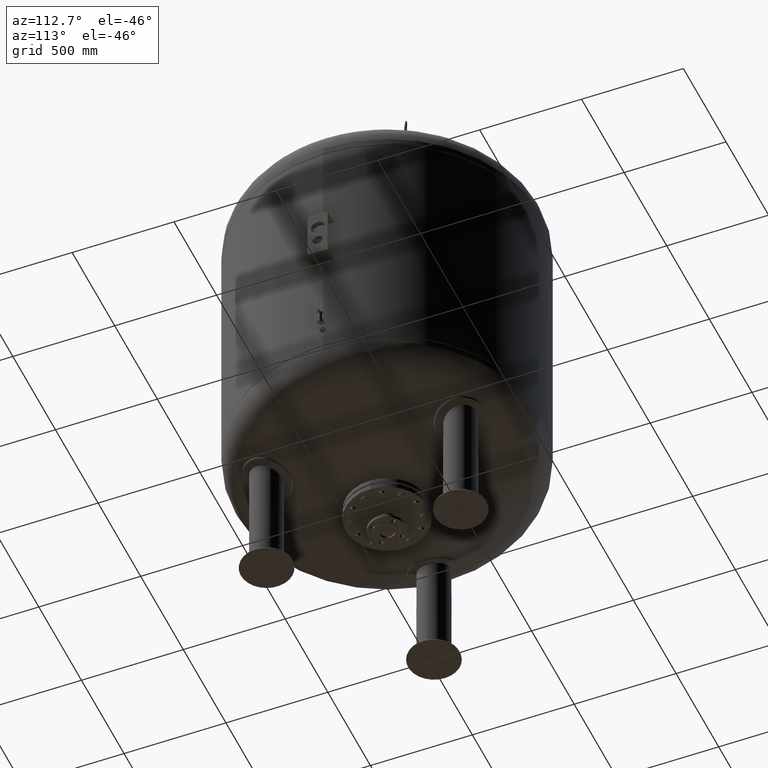
[diagram: clean part render]
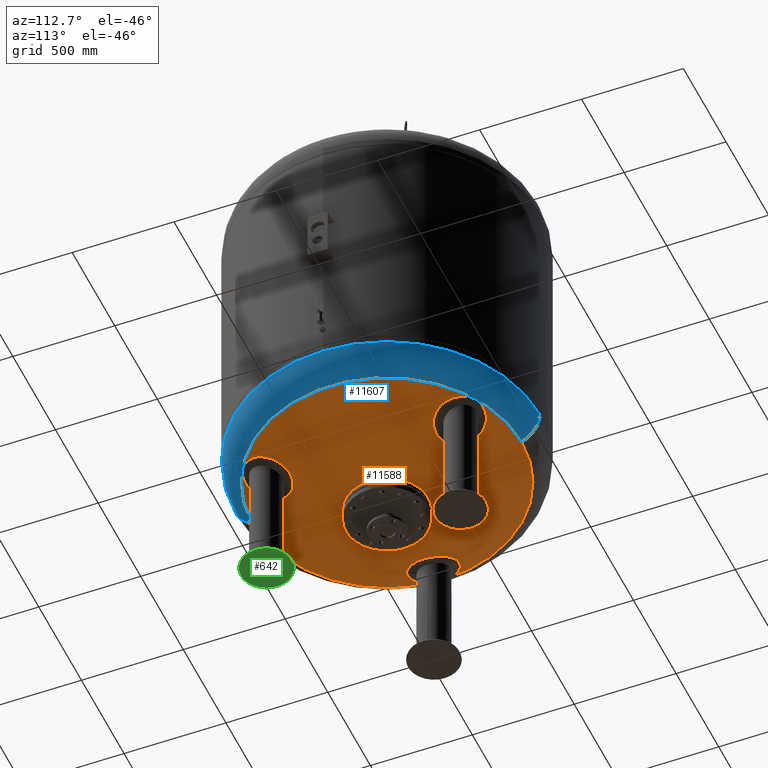
[diagram: same view with three faces highlighted in distinct colors, each labeled with its STEP entity id]
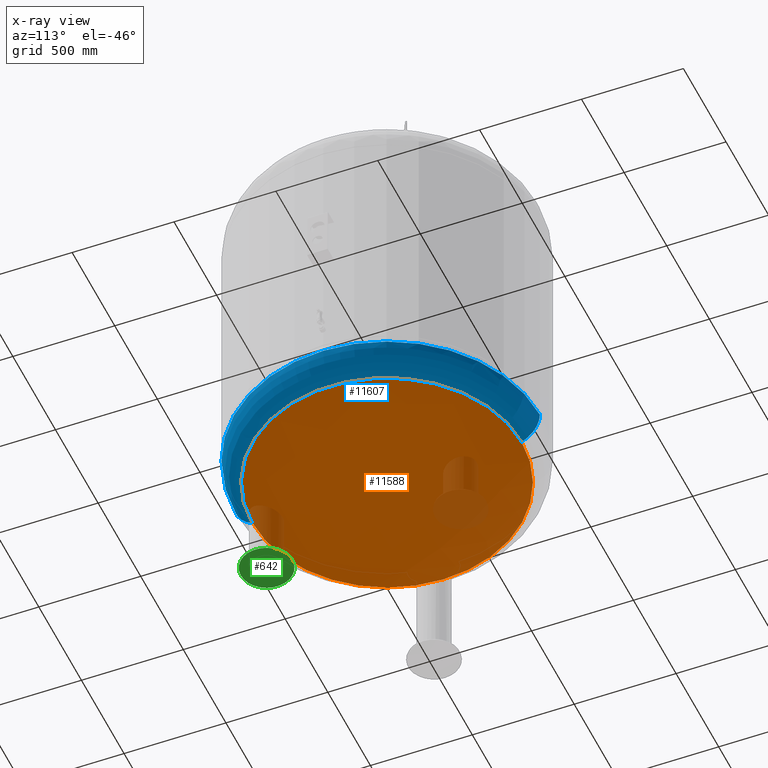
[diagram: x-ray of the same camera — body ghosted, the three highlighted faces saturated]
A machine part, auxiliary view with three faces highlighted in distinct colors.
The next image is the same camera in x-ray (body ghosted, the three faces saturated) — at least one of them is partly hidden behind the body in this view.
Their STEP definitions:

[orange] entity #11588 — the highlighted spherical surface has radius 1509 mm.
#11527=CARTESIAN_POINT('',(-4.647817E-014,-660.606666666666800,642.283437133770350));
#11528=VERTEX_POINT('',#11527);
#11544=CARTESIAN_POINT('',(-1.273765E-013,660.606666666666800,642.283437133770800));
#11545=VERTEX_POINT('',#11544);
#11553=CARTESIAN_POINT('',(-660.606666666666800,-2.797401E-014,642.283437133770460));
#11554=VERTEX_POINT('',#11553);
#11555=CARTESIAN_POINT('',(-2.617994E-014,-2.797401E-014,642.283437133770580));
#11556=DIRECTION('',(0.0,0.0,1.0));
#11557=DIRECTION('',(-1.0,0.0,0.0));
#11558=AXIS2_PLACEMENT_3D('',#11555,#11556,#11557);
#11559=CIRCLE('',#11558,660.606666666666800);
#11560=EDGE_CURVE('',#11545,#11554,#11559,.T.);
#11562=CARTESIAN_POINT('',(-2.617994E-014,-2.797401E-014,642.283437133770580));
#11563=DIRECTION('',(0.0,0.0,1.0));
#11564=DIRECTION('',(-1.0,0.0,0.0));
#11565=AXIS2_PLACEMENT_3D('',#11562,#11563,#11564);
#11566=CIRCLE('',#11565,660.606666666666800);
#11567=EDGE_CURVE('',#11554,#11528,#11566,.T.);
#11572=CARTESIAN_POINT('',(-3.455040E-013,-2.771988E-013,1999.0));
#11573=DIRECTION('',(0.0,-1.0,0.0));
#11574=DIRECTION('',(1.0,0.0,0.0));
#11575=AXIS2_PLACEMENT_3D('',#11572,#11573,#11574);
#11576=SPHERICAL_SURFACE('',#11575,1509.0);
#11577=ORIENTED_EDGE('',*,*,#11567,.F.);
#11578=ORIENTED_EDGE('',*,*,#11560,.F.);
#11579=CARTESIAN_POINT('',(-2.617994E-014,-2.797401E-014,642.283437133770580));
#11580=DIRECTION('',(0.0,0.0,1.0));
#11581=DIRECTION('',(-1.0,0.0,0.0));
#11582=AXIS2_PLACEMENT_3D('',#11579,#11580,#11581);
#11583=CIRCLE('',#11582,660.606666666666800);
#11584=EDGE_CURVE('',#11528,#11545,#11583,.T.);
#11585=ORIENTED_EDGE('',*,*,#11584,.F.);
#11586=EDGE_LOOP('',(#11577,#11578,#11585));
#11587=FACE_OUTER_BOUND('',#11586,.T.);
#11588=ADVANCED_FACE('',(#11587),#11576,.T.);

[blue] entity #11607 — the highlighted toroidal blend (fillet) surface has major radius 591 mm and minor (blend) radius 159 mm.
#11493=CARTESIAN_POINT('',(750.0,3.761120E-014,785.237667415898160));
#11494=VERTEX_POINT('',#11493);
#11501=CARTESIAN_POINT('',(-1.628998E-013,750.0,785.237667415898270));
#11502=VERTEX_POINT('',#11501);
#11503=CARTESIAN_POINT('',(-5.075605E-014,-5.423428E-014,785.237667415898160));
#11504=DIRECTION('',(0.0,0.0,1.0));
#11505=DIRECTION('',(-1.0,0.0,0.0));
#11506=AXIS2_PLACEMENT_3D('',#11503,#11504,#11505);
#11507=CIRCLE('',#11506,750.0);
#11508=EDGE_CURVE('',#11494,#11502,#11507,.T.);
#11525=CARTESIAN_POINT('',(-7.105427E-014,-750.0,785.237667415898040));
#11526=VERTEX_POINT('',#11525);
#11527=CARTESIAN_POINT('',(-4.647817E-014,-660.606666666666800,642.283437133770350));
#11528=VERTEX_POINT('',#11527);
#11529=CARTESIAN_POINT('',(-7.105427E-014,-591.0,785.237667415898040));
#11530=DIRECTION('',(1.0,0.0,0.0));
#11531=DIRECTION('',(0.0,-1.0,0.0));
#11532=AXIS2_PLACEMENT_3D('',#11529,#11530,#11531);
#11533=CIRCLE('',#11532,159.0);
#11534=EDGE_CURVE('',#11526,#11528,#11533,.T.);
#11544=CARTESIAN_POINT('',(-1.273765E-013,660.606666666666800,642.283437133770800));
#11545=VERTEX_POINT('',#11544);
#11546=CARTESIAN_POINT('',(-1.434285E-013,591.0,785.237667415898270));
#11547=DIRECTION('',(-1.0,0.0,0.0));
#11548=DIRECTION('',(0.0,1.0,0.0));
#11549=AXIS2_PLACEMENT_3D('',#11546,#11547,#11548);
#11550=CIRCLE('',#11549,159.0);
#11551=EDGE_CURVE('',#11502,#11545,#11550,.T.);
#11579=CARTESIAN_POINT('',(-2.617994E-014,-2.797401E-014,642.283437133770580));
#11580=DIRECTION('',(0.0,0.0,1.0));
#11581=DIRECTION('',(-1.0,0.0,0.0));
#11582=AXIS2_PLACEMENT_3D('',#11579,#11580,#11581);
#11583=CIRCLE('',#11582,660.606666666666800);
#11584=EDGE_CURVE('',#11528,#11545,#11583,.T.);
#11589=CARTESIAN_POINT('',(-7.105427E-014,-5.423428E-014,785.237667415898160));
#11590=DIRECTION('',(-1.719159E-016,-1.836970E-016,1.0));
#11591=DIRECTION('',(0.0,-1.0,0.0));
#11592=AXIS2_PLACEMENT_3D('',#11589,#11590,#11591);
#11593=TOROIDAL_SURFACE('',#11592,591.0,159.0);
#11594=ORIENTED_EDGE('',*,*,#11534,.T.);
#11595=ORIENTED_EDGE('',*,*,#11584,.T.);
#11596=ORIENTED_EDGE('',*,*,#11551,.F.);
#11597=ORIENTED_EDGE('',*,*,#11508,.F.);
#11598=CARTESIAN_POINT('',(-5.075605E-014,-5.423428E-014,785.237667415898160));
#11599=DIRECTION('',(0.0,0.0,1.0));
#11600=DIRECTION('',(-1.0,0.0,0.0));
#11601=AXIS2_PLACEMENT_3D('',#11598,#11599,#11600);
#11602=CIRCLE('',#11601,750.0);
#11603=EDGE_CURVE('',#11526,#11494,#11602,.T.);
#11604=ORIENTED_EDGE('',*,*,#11603,.F.);
#11605=EDGE_LOOP('',(#11594,#11595,#11596,#11597,#11604));
#11606=FACE_OUTER_BOUND('',#11605,.T.);
#11607=ADVANCED_FACE('',(#11606),#11593,.T.);

[green] entity #642 — the highlighted spherical surface has radius 570 mm.
#130=CARTESIAN_POINT('',(338.155635094881400,-585.702740850056100,14.171372612881115));
#131=VERTEX_POINT('',#130);
#140=CARTESIAN_POINT('',(211.844364905118400,-366.925203312826450,14.171372612881102));
#141=VERTEX_POINT('',#140);
#142=CARTESIAN_POINT('',(274.999999999999890,-476.313972081441250,14.171372612881115));
#143=DIRECTION('',(0.0,0.0,-1.0));
#144=DIRECTION('',(0.500000000000000,-0.866025403784439,0.0));
#145=AXIS2_PLACEMENT_3D('',#142,#143,#144);
#146=CIRCLE('',#145,126.311270189763010);
#147=EDGE_CURVE('',#141,#131,#146,.T.);
#623=CARTESIAN_POINT('',(274.999999999999890,-476.313972081441250,14.171372612881115));
#624=DIRECTION('',(0.0,0.0,-1.0));
#625=DIRECTION('',(0.500000000000000,-0.866025403784439,0.0));
#626=AXIS2_PLACEMENT_3D('',#623,#624,#625);
#627=CIRCLE('',#626,126.311270189763010);
#628=EDGE_CURVE('',#131,#141,#627,.T.);
#633=CARTESIAN_POINT('',(274.999999999999770,-476.313972081441310,570.0));
#634=DIRECTION('',(-0.866025403784439,-0.500000000000000,-1.836970E-016));
#635=DIRECTION('',(0.500000000000000,-0.866025403784439,0.0));
#636=AXIS2_PLACEMENT_3D('',#633,#634,#635);
#637=SPHERICAL_SURFACE('',#636,570.0);
#638=ORIENTED_EDGE('',*,*,#628,.T.);
#639=ORIENTED_EDGE('',*,*,#147,.T.);
#640=EDGE_LOOP('',(#638,#639));
#641=FACE_OUTER_BOUND('',#640,.T.);
#642=ADVANCED_FACE('',(#641),#637,.T.);